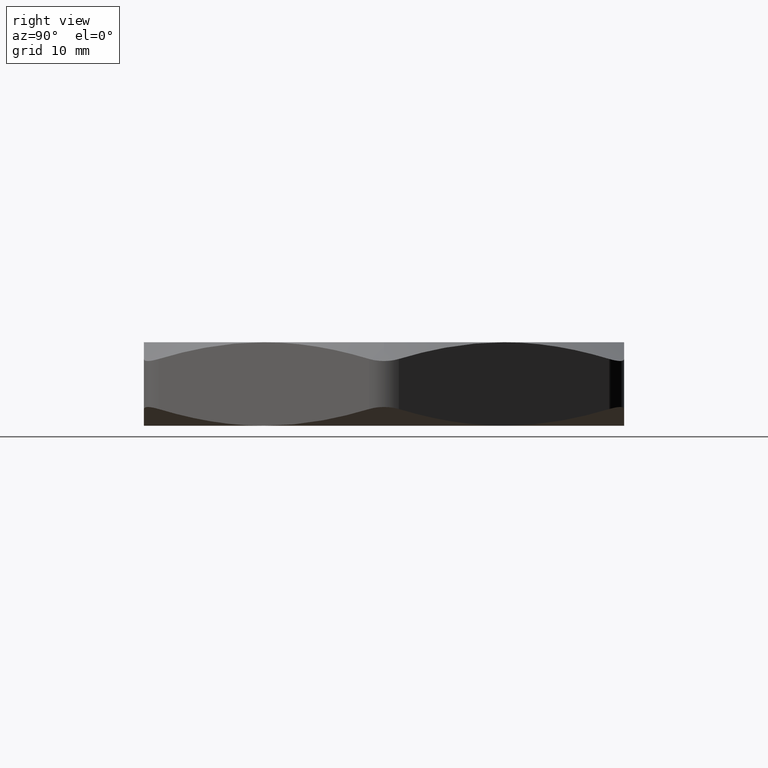
[diagram: clean part render]
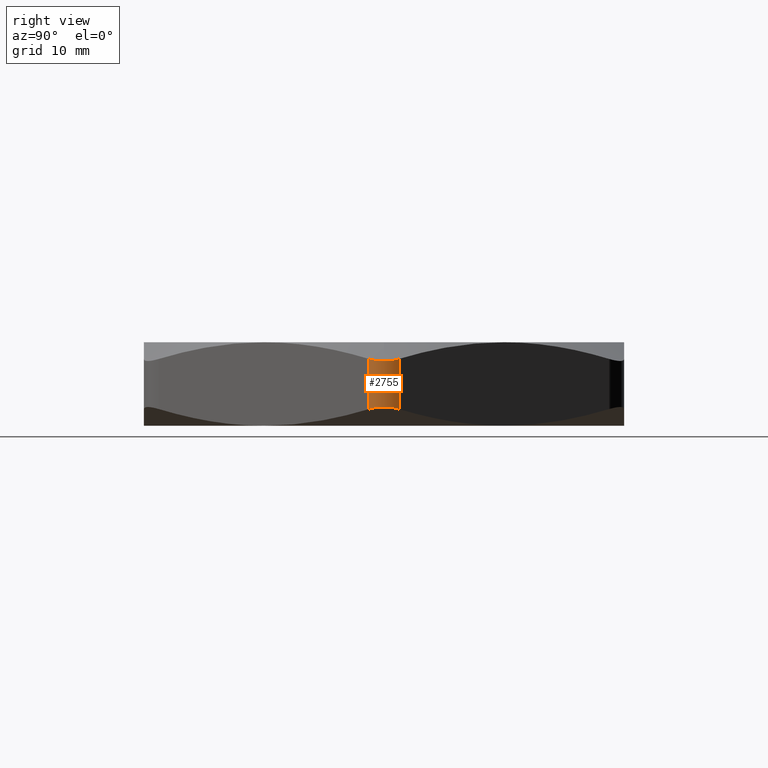
[diagram: same view with one face highlighted and labeled with its STEP entity id]
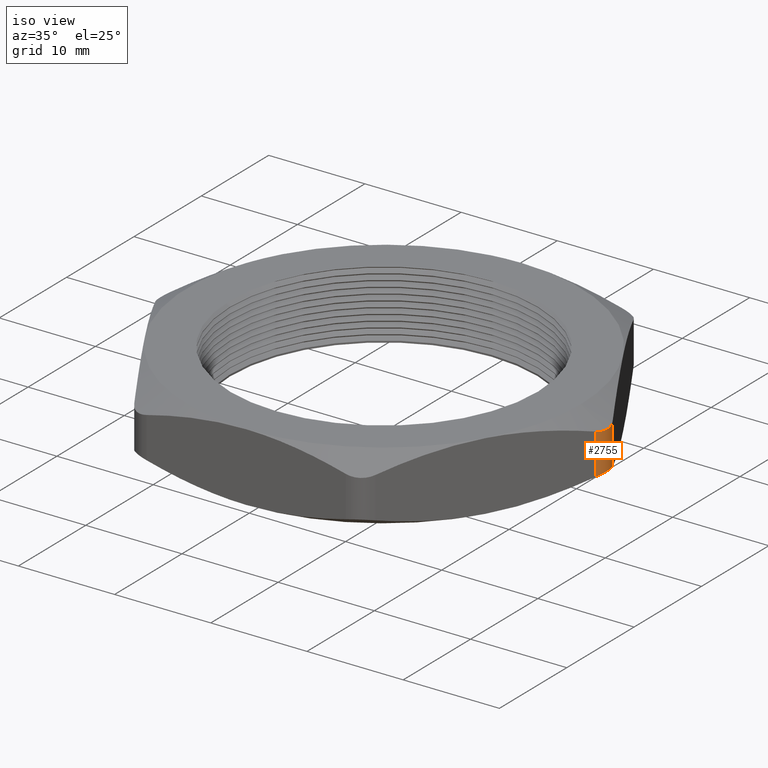
[diagram: same view with one face highlighted and labeled with its STEP entity id]
A machine part, right view. The second image highlights one B-rep face of the part: STEP entity #2755.
A second angle (iso view) of the same face is appended — the face is thin or edge-on in the first view.
In plain terms, the highlighted cylindrical surface (edge-blend (fillet) strip) has radius 2.54 mm, axis along (0, 0, -1).
Its self-contained STEP definition (entity closure, byte-faithful):
#311 = CARTESIAN_POINT ( 'NONE',  ( 0.9006664199358162000, -0.04999999999999955200, 0.05603369894452663700 ) ) ;
#417 = VERTEX_POINT ( 'NONE', #311 ) ;
#452 = EDGE_CURVE ( 'NONE', #417, #2678, #622, .T. ) ;
#461 = EDGE_CURVE ( 'NONE', #2678, #2230, #654, .T. ) ;
#502 = EDGE_CURVE ( 'NONE', #2572, #417, #714, .T. ) ;
#619 = DIRECTION ( 'NONE',  ( 0.0000000000000000000, 0.0000000000000000000, 1.000000000000000000 ) ) ;
#620 = VECTOR ( 'NONE', #619, 39.37007874015748100 ) ;
#621 = CARTESIAN_POINT ( 'NONE',  ( 0.9006664199358163100, -0.04999999999999946800, 0.2800000000000000300 ) ) ;
#622 = LINE ( 'NONE', #621, #620 ) ;
#648 = CARTESIAN_POINT ( 'NONE',  ( 0.9140638795573723400, -1.176148129162193700E-025, 0.2170319397786865900 ) ) ;
#649 = CARTESIAN_POINT ( 'NONE',  ( 0.9140638795573722300, -0.008807635816904566000, 0.2170319397786865900 ) ) ;
#650 = CARTESIAN_POINT ( 'NONE',  ( 0.9128878658695542800, -0.01763036419315762400, 0.2176356531497023500 ) ) ;
#651 = CARTESIAN_POINT ( 'NONE',  ( 0.9083067403302123000, -0.03457301267701213400, 0.2199992061566143400 ) ) ;
#652 = CARTESIAN_POINT ( 'NONE',  ( 0.9049784796310006400, -0.04253129352266995400, 0.2217195732279039200 ) ) ;
#653 = CARTESIAN_POINT ( 'NONE',  ( 0.9006664199358163100, -0.04999999999999948900, 0.2239663010554733500 ) ) ;
#654 = B_SPLINE_CURVE_WITH_KNOTS ( 'NONE', 3,
 ( #653, #652, #651, #650, #649, #648 ),
 .UNSPECIFIED., .F., .F.,
 ( 4, 2, 4 ),
 ( 2.949348774913697500E-018, 0.0006700270679686182700, 0.001340054135937233700 ),
 .UNSPECIFIED. ) ;
#702 = CARTESIAN_POINT ( 'NONE',  ( 0.9006664199358162000, -0.04999999999999955200, 0.05603369894452663700 ) ) ;
#703 = CARTESIAN_POINT ( 'NONE',  ( 0.9049728092065636400, -0.04254111498589638300, 0.05827747229064689200 ) ) ;
#704 = CARTESIAN_POINT ( 'NONE',  ( 0.9083585438616032000, -0.03441384472617259300, 0.06002755000434437100 ) ) ;
#705 = CARTESIAN_POINT ( 'NONE',  ( 0.9128869973805486800, -0.01760079000474993100, 0.06236386942101725800 ) ) ;
#706 = CARTESIAN_POINT ( 'NONE',  ( 0.9140713697210175500, -0.008707151024795502200, 0.06297191156815898400 ) ) ;
#707 = CARTESIAN_POINT ( 'NONE',  ( 0.9140563161161647800, 0.008878355638070087300, 0.06296417119607829200 ) ) ;
#708 = CARTESIAN_POINT ( 'NONE',  ( 0.9128764291937847600, 0.01768693930189259300, 0.06235845917511474000 ) ) ;
#709 = CARTESIAN_POINT ( 'NONE',  ( 0.9082958973985293400, 0.03459876588985776000, 0.05999518667511620500 ) ) ;
#710 = CARTESIAN_POINT ( 'NONE',  ( 0.9049714944957628600, 0.04254339213180057700, 0.05827678728219389700 ) ) ;
#711 = CARTESIAN_POINT ( 'NONE',  ( 0.9006664199358163100, 0.05000000000000036400, 0.05603369894452667900 ) ) ;
#714 = B_SPLINE_CURVE_WITH_KNOTS ( 'NONE', 3,
 ( #711, #710, #709, #708, #707, #706, #705, #704, #703, #702 ),
 .UNSPECIFIED., .F., .F.,
 ( 4, 2, 2, 2, 4 ),
 ( 3.743246273196791200E-018, 0.0006689416865004515800, 0.001337883373000899300, 0.002006825059501346800, 0.002675766746001794600 ),
 .UNSPECIFIED. ) ;
#969 = CARTESIAN_POINT ( 'NONE',  ( 0.9006664199358162000, 0.05000000000000046800, 0.2239663010554733800 ) ) ;
#970 = CARTESIAN_POINT ( 'NONE',  ( 0.9049658219381613300, 0.04255321728977651300, 0.2217261683107056000 ) ) ;
#971 = CARTESIAN_POINT ( 'NONE',  ( 0.9083476670639417700, 0.03444003019786508200, 0.2199780742211808700 ) ) ;
#972 = CARTESIAN_POINT ( 'NONE',  ( 0.9128758142867154900, 0.01765643853266827400, 0.2176418875526737500 ) ) ;
#973 = CARTESIAN_POINT ( 'NONE',  ( 0.9140638795573726700, 0.008779100716903269100, 0.2170319397786865400 ) ) ;
#974 = CARTESIAN_POINT ( 'NONE',  ( 0.9140638795573723400, -1.176148129162193700E-025, 0.2170319397786865900 ) ) ;
#975 = CARTESIAN_POINT ( 'NONE',  ( 0.9006664199358162000, 0.05000000000000046800, 0.2239663010554733800 ) ) ;
#976 = B_SPLINE_CURVE_WITH_KNOTS ( 'NONE', 3,
 ( #974, #973, #972, #971, #970, #969 ),
 .UNSPECIFIED., .F., .F.,
 ( 4, 2, 4 ),
 ( 0.001340054135937233700, 0.002007910440969515100, 0.002675766746001796400 ),
 .UNSPECIFIED. ) ;
#977 = CARTESIAN_POINT ( 'NONE',  ( 0.9140638795573723400, -1.176148129162193700E-025, 0.2170319397786865900 ) ) ;
#1673 = CARTESIAN_POINT ( 'NONE',  ( 0.9006664199358163100, 0.05000000000000036400, 0.05603369894452667900 ) ) ;
#1674 = DIRECTION ( 'NONE',  ( 0.0000000000000000000, 0.0000000000000000000, -1.000000000000000000 ) ) ;
#1675 = VECTOR ( 'NONE', #1674, 39.37007874015748100 ) ;
#1676 = CARTESIAN_POINT ( 'NONE',  ( 0.9006664199358162000, 0.05000000000000047500, 0.2800000000000000300 ) ) ;
#1677 = LINE ( 'NONE', #1676, #1675 ) ;
#1895 = CARTESIAN_POINT ( 'NONE',  ( 0.9006664199358163100, -0.04999999999999948900, 0.2239663010554733500 ) ) ;
#2006 = DIRECTION ( 'NONE',  ( -1.000000000000000000, 0.0000000000000000000, 0.0000000000000000000 ) ) ;
#2007 = DIRECTION ( 'NONE',  ( 0.0000000000000000000, 0.0000000000000000000, -1.000000000000000000 ) ) ;
#2008 = CARTESIAN_POINT ( 'NONE',  ( 0.8140638795573723600, 5.122214988120493300E-016, 0.2800000000000000300 ) ) ;
#2009 = AXIS2_PLACEMENT_3D ( 'NONE', #2008, #2007, #2006 ) ;
#2011 = CYLINDRICAL_SURFACE ( 'NONE', #2009, 0.1000000000000000200 ) ;
#2016 = FACE_OUTER_BOUND ( 'NONE', #2753, .T. ) ;
#2230 = VERTEX_POINT ( 'NONE', #977 ) ;
#2232 = EDGE_CURVE ( 'NONE', #2230, #2233, #976, .T. ) ;
#2233 = VERTEX_POINT ( 'NONE', #975 ) ;
#2571 = EDGE_CURVE ( 'NONE', #2233, #2572, #1677, .T. ) ;
#2572 = VERTEX_POINT ( 'NONE', #1673 ) ;
#2678 = VERTEX_POINT ( 'NONE', #1895 ) ;
#2738 = ORIENTED_EDGE ( 'NONE', *, *, #2571, .F. ) ;
#2739 = ORIENTED_EDGE ( 'NONE', *, *, #2232, .F. ) ;
#2751 = ORIENTED_EDGE ( 'NONE', *, *, #502, .F. ) ;
#2752 = ORIENTED_EDGE ( 'NONE', *, *, #452, .F. ) ;
#2753 = EDGE_LOOP ( 'NONE', ( #2754, #2752, #2751, #2738, #2739 ) ) ;
#2754 = ORIENTED_EDGE ( 'NONE', *, *, #461, .F. ) ;
#2755 = ADVANCED_FACE ( 'NONE', ( #2016 ), #2011, .T. ) ;